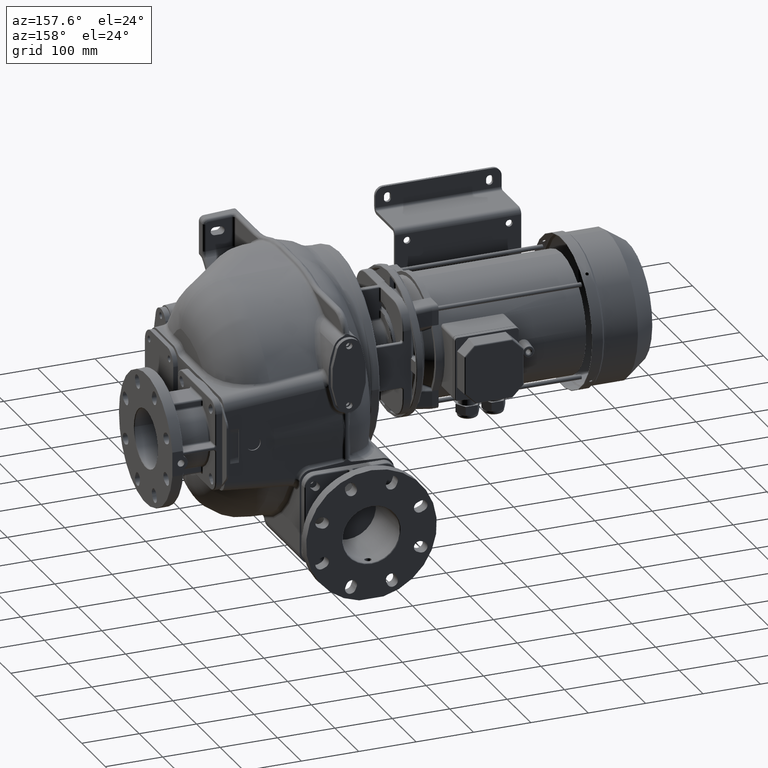
[diagram: clean part render]
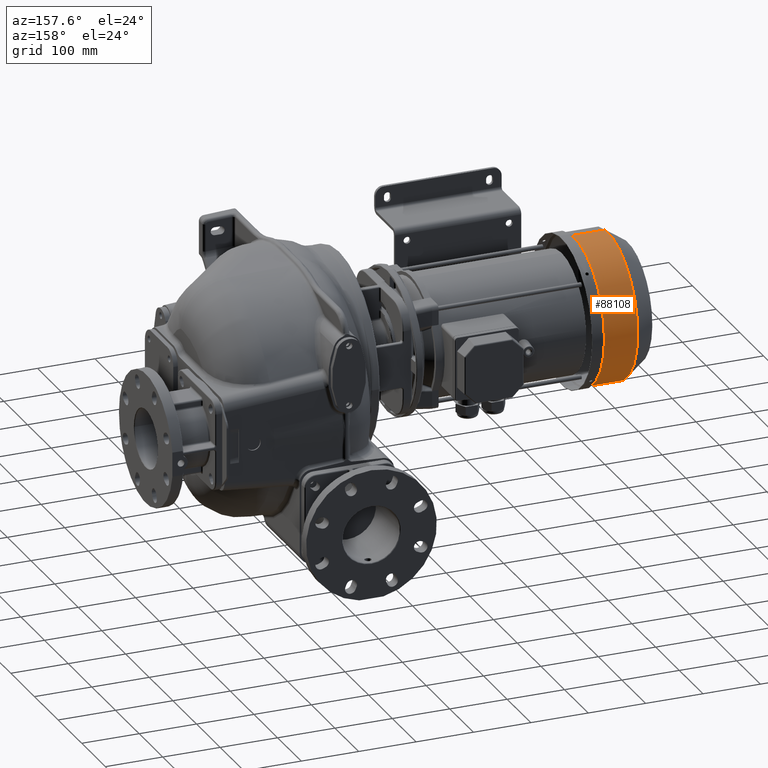
[diagram: same view with one face highlighted and labeled with its STEP entity id]
A machine part, auxiliary view. The second image highlights one B-rep face of the part: STEP entity #88108.
In plain terms, the highlighted cylindrical surface (partial cylindrical patch) has radius 126.5 mm, axis along (-1, 0, 0).
Its self-contained STEP definition (entity closure, byte-faithful):
#71701=CARTESIAN_POINT('',(-5.968801508043E2,2.2E2,-1.9E1));
#71702=DIRECTION('',(-1.E0,0.E0,0.E0));
#71703=DIRECTION('',(0.E0,-8.715574274766E-2,9.961946980917E-1));
#71704=AXIS2_PLACEMENT_3D('',#71701,#71702,#71703);
#71731=CARTESIAN_POINT('',(-5.389142135624E2,2.2E2,-1.9E1));
#71732=DIRECTION('',(1.E0,0.E0,0.E0));
#71733=DIRECTION('',(0.E0,8.715574274766E-2,-9.961946980917E-1));
#71734=AXIS2_PLACEMENT_3D('',#71731,#71732,#71733);
#71746=DIRECTION('',(-1.E0,0.E0,0.E0));
#71747=VECTOR('',#71746,5.796593724197E1);
#71748=CARTESIAN_POINT('',(-5.389142135624E2,2.089747985424E2,
1.070186293086E2));
#71749=LINE('',#71748,#71747);
#71750=DIRECTION('',(-1.E0,0.E0,0.E0));
#71751=VECTOR('',#71750,5.796593724197E1);
#71752=CARTESIAN_POINT('',(-5.389142135624E2,2.310252014576E2,
-1.450186293086E2));
#71753=LINE('',#71752,#71751);
#81972=CARTESIAN_POINT('',(-5.389142135624E2,2.310252014576E2,
-1.450186293086E2));
#81973=CARTESIAN_POINT('',(-5.968801508043E2,2.310252014576E2,
-1.450186293086E2));
#81974=VERTEX_POINT('',#81972);
#81975=VERTEX_POINT('',#81973);
#81976=CARTESIAN_POINT('',(-5.389142135624E2,2.089747985424E2,
1.070186293086E2));
#81977=CARTESIAN_POINT('',(-5.968801508043E2,2.089747985424E2,
1.070186293086E2));
#81978=VERTEX_POINT('',#81976);
#81979=VERTEX_POINT('',#81977);
#88097=CARTESIAN_POINT('',(-5.165E2,2.2E2,-1.9E1));
#88098=DIRECTION('',(-1.E0,0.E0,0.E0));
#88099=DIRECTION('',(0.E0,8.715574274766E-2,-9.961946980917E-1));
#88100=AXIS2_PLACEMENT_3D('',#88097,#88098,#88099);
#88101=CYLINDRICAL_SURFACE('',#88100,1.265E2);
#88102=ORIENTED_EDGE('',*,*,#88089,.T.);
#88103=ORIENTED_EDGE('',*,*,#88063,.T.);
#88104=ORIENTED_EDGE('',*,*,#88022,.T.);
#88105=ORIENTED_EDGE('',*,*,#88060,.F.);
#88106=EDGE_LOOP('',(#88102,#88103,#88104,#88105));
#88107=FACE_OUTER_BOUND('',#88106,.F.);
#88108=ADVANCED_FACE('',(#88107),#88101,.T.);
#71705=CIRCLE('',#71704,1.265E2);
#71735=CIRCLE('',#71734,1.265E2);
#88022=EDGE_CURVE('',#81979,#81975,#71705,.T.);
#88060=EDGE_CURVE('',#81974,#81975,#71753,.T.);
#88063=EDGE_CURVE('',#81978,#81979,#71749,.T.);
#88089=EDGE_CURVE('',#81974,#81978,#71735,.T.);